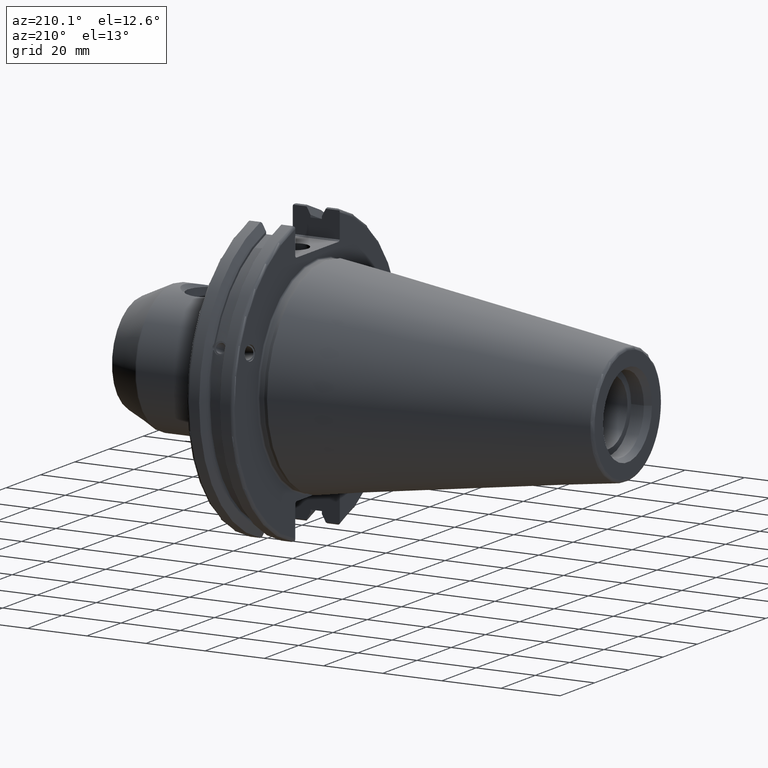
[diagram: clean part render]
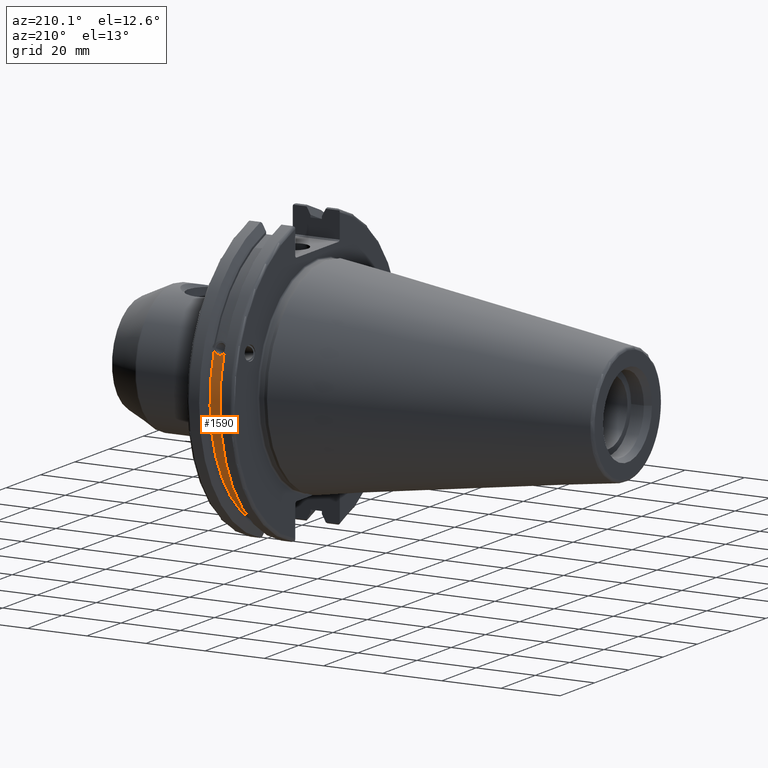
[diagram: same view with one face highlighted and labeled with its STEP entity id]
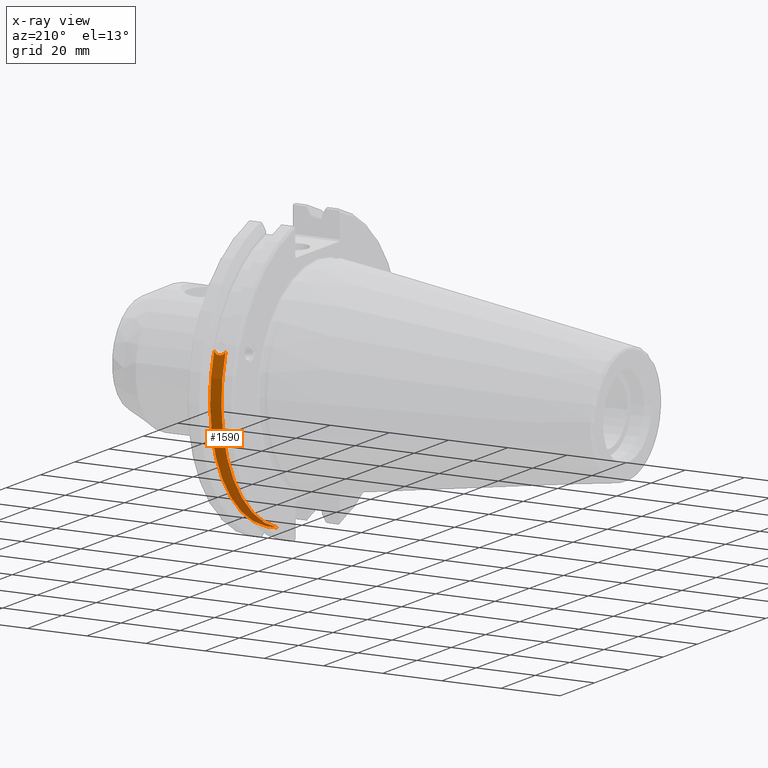
[diagram: x-ray of the same camera — body ghosted, the highlighted face saturated]
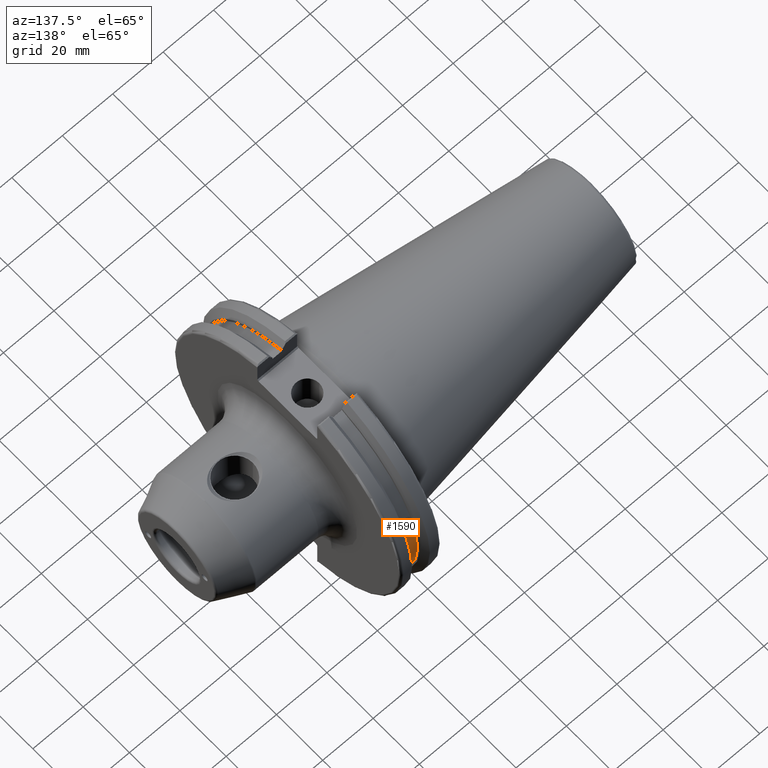
[diagram: same view with one face highlighted and labeled with its STEP entity id]
A machine part, auxiliary view. The second image highlights one B-rep face of the part: STEP entity #1590.
The next image is the same camera in x-ray: the body ghosted, the highlighted face saturated — about 0% of this face is hidden behind the body in this view.
A second angle (auxiliary view) of the same face is appended — the face is thin or edge-on in the first view.
In plain terms, the highlighted cylindrical surface (partial cylindrical patch) has radius 45.6435 mm, axis along (1, 0, 0).
Its self-contained STEP definition (entity closure, byte-faithful):
#183=CIRCLE('',#1771,45.6435);
#185=CIRCLE('',#1775,45.6435);
#266=FACE_OUTER_BOUND('',#374,.T.);
#374=EDGE_LOOP('',(#1451,#1452,#1453,#1454));
#412=B_SPLINE_CURVE_WITH_KNOTS('',3,(#2914,#2915,#2916,#2917,#2918,#2919,
#2920,#2921,#2922,#2923,#2924,#2925,#2926,#2927),.UNSPECIFIED.,.F.,.F.,
(4,2,2,2,2,2,4),(0.401548312576692,0.47469709549563,0.553813286063442,0.632929476631253,
0.712045667199065,0.791161857766876,0.864310640685814),.UNSPECIFIED.);
#494=LINE('',#3116,#587);
#587=VECTOR('',#2059,10.);
#704=VERTEX_POINT('',#2911);
#705=VERTEX_POINT('',#2913);
#748=VERTEX_POINT('',#3113);
#749=VERTEX_POINT('',#3115);
#889=EDGE_CURVE('',#705,#704,#412,.T.);
#946=EDGE_CURVE('',#749,#748,#494,.T.);
#1007=EDGE_CURVE('',#748,#705,#183,.T.);
#1009=EDGE_CURVE('',#749,#704,#185,.T.);
#1451=ORIENTED_EDGE('',*,*,#889,.T.);
#1452=ORIENTED_EDGE('',*,*,#1009,.F.);
#1453=ORIENTED_EDGE('',*,*,#946,.T.);
#1454=ORIENTED_EDGE('',*,*,#1007,.T.);
#1510=CYLINDRICAL_SURFACE('',#1774,45.6435);
#1590=ADVANCED_FACE('',(#266),#1510,.T.);
#1771=AXIS2_PLACEMENT_3D('',#3317,#2177,#2178);
#1774=AXIS2_PLACEMENT_3D('',#3320,#2183,#2184);
#1775=AXIS2_PLACEMENT_3D('',#3321,#2185,#2186);
#2059=DIRECTION('',(-1.,0.,0.));
#2177=DIRECTION('center_axis',(1.,0.,0.));
#2178=DIRECTION('ref_axis',(0.,0.,-1.));
#2183=DIRECTION('center_axis',(1.,0.,0.));
#2184=DIRECTION('ref_axis',(0.,1.,0.));
#2185=DIRECTION('center_axis',(1.,0.,0.));
#2186=DIRECTION('ref_axis',(0.,0.,-1.));
#2911=CARTESIAN_POINT('',(13.042,43.1779814500336,14.7983448449669));
#2913=CARTESIAN_POINT('',(9.21200000000001,43.1779814500336,14.7983448449669));
#2914=CARTESIAN_POINT('Ctrl Pts',(9.21200000000001,43.1779814500336,14.7983448449669));
#2915=CARTESIAN_POINT('Ctrl Pts',(9.31822177598177,43.2545173750974,14.5750315766731));
#2916=CARTESIAN_POINT('Ctrl Pts',(9.46970807557667,43.3223492818373,14.3712521044637));
#2917=CARTESIAN_POINT('Ctrl Pts',(9.8285050340018,43.4340904392251,14.0300988117073));
#2918=CARTESIAN_POINT('Ctrl Pts',(10.0646203280543,43.4832903960863,13.8760243976176));
#2919=CARTESIAN_POINT('Ctrl Pts',(10.5820059167872,43.54802519266,13.6715068146718));
#2920=CARTESIAN_POINT('Ctrl Pts',(10.863279364774,43.5636826100883,13.6211104428929));
#2921=CARTESIAN_POINT('Ctrl Pts',(11.390720635226,43.5636826100883,13.6211104428929));
#2922=CARTESIAN_POINT('Ctrl Pts',(11.6719940832128,43.54802519266,13.6715068146718));
#2923=CARTESIAN_POINT('Ctrl Pts',(12.1893796719457,43.4832903960863,13.8760243976176));
#2924=CARTESIAN_POINT('Ctrl Pts',(12.4254949659982,43.4340904392251,14.0300988117073));
#2925=CARTESIAN_POINT('Ctrl Pts',(12.7842919244233,43.3223492818373,14.3712521044637));
#2926=CARTESIAN_POINT('Ctrl Pts',(12.9357782240182,43.2545173750974,14.5750315766731));
#2927=CARTESIAN_POINT('Ctrl Pts',(13.042,43.1779814500336,14.7983448449669));
#3113=CARTESIAN_POINT('',(9.21200000000001,12.95,-43.7678716897452));
#3115=CARTESIAN_POINT('',(13.042,12.95,-43.7678716897452));
#3116=CARTESIAN_POINT('',(11.127,12.95,-43.7678716897452));
#3317=CARTESIAN_POINT('Origin',(9.21200000000001,0.,0.));
#3320=CARTESIAN_POINT('Origin',(11.127,0.,0.));
#3321=CARTESIAN_POINT('Origin',(13.042,0.,0.));